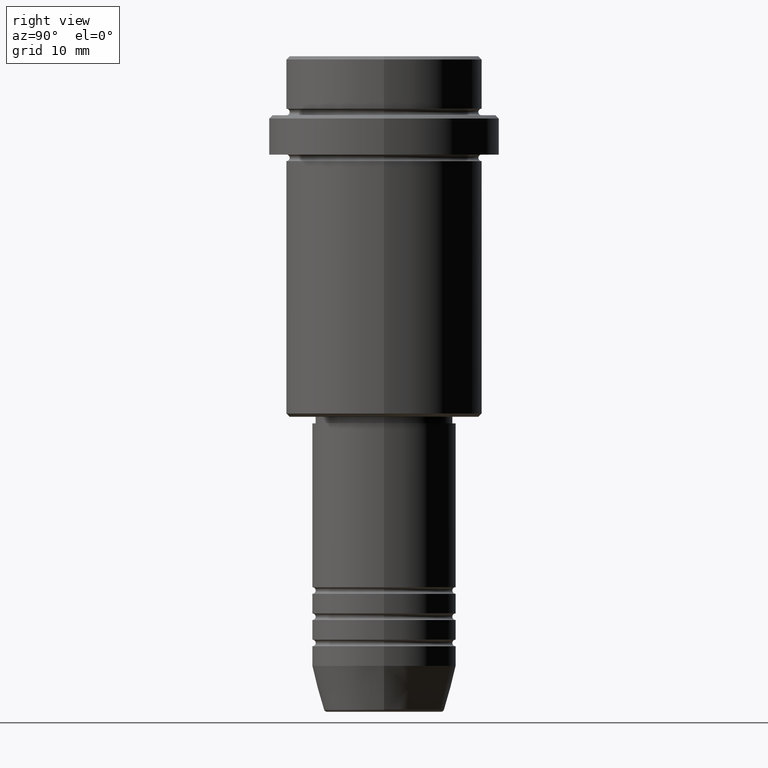
[diagram: clean part render]
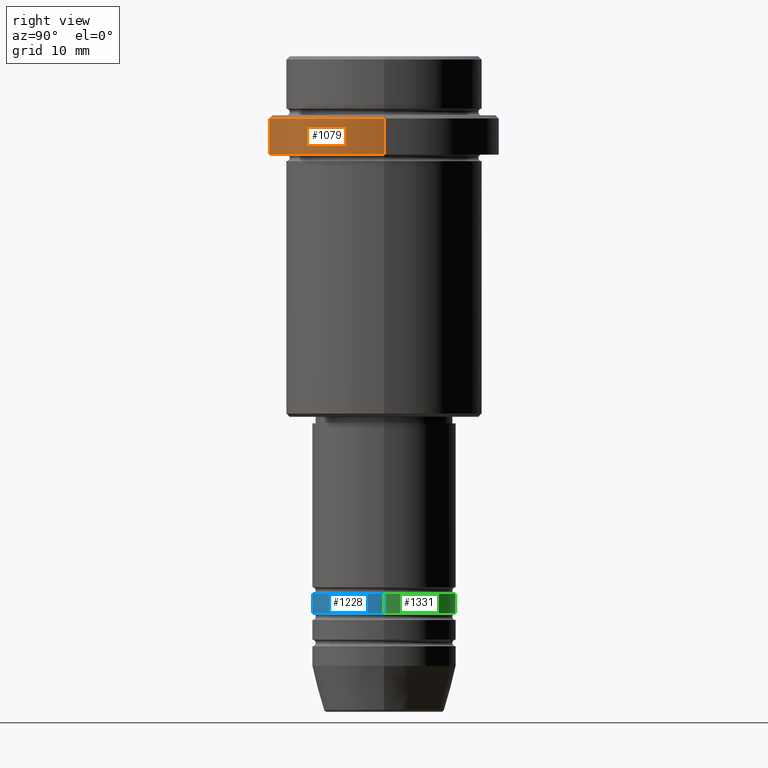
[diagram: same view with three faces highlighted in distinct colors, each labeled with its STEP entity id]
A machine part, right view with three faces highlighted in distinct colors.
Their STEP definitions:

[orange] entity #1079 — the highlighted cylindrical surface (partial cylindrical patch) has radius 17.5 mm, axis along (-0, -0, 1).
#160 = VERTEX_POINT ( 'NONE', #935 ) ;
#176 = CARTESIAN_POINT ( 'NONE',  ( -17.50000000000000000, 2.143131898507868248E-15, -9.500000000000026645 ) ) ;
#203 = ORIENTED_EDGE ( 'NONE', *, *, #1408, .T. ) ;
#205 = ORIENTED_EDGE ( 'NONE', *, *, #267, .T. ) ;
#237 = CARTESIAN_POINT ( 'NONE',  ( 0.000000000000000000, 0.000000000000000000, 0.000000000000000000 ) ) ;
#247 = CIRCLE ( 'NONE', #276, 17.50000000000000000 ) ;
#263 = DIRECTION ( 'NONE',  ( -0.000000000000000000, -0.000000000000000000, 1.000000000000000000 ) ) ;
#267 = EDGE_CURVE ( 'NONE', #1060, #160, #491, .T. ) ;
#276 = AXIS2_PLACEMENT_3D ( 'NONE', #400, #1279, #1065 ) ;
#383 = CIRCLE ( 'NONE', #922, 17.50000000000000000 ) ;
#388 = VECTOR ( 'NONE', #263, 1000.000000000000000 ) ;
#389 = LINE ( 'NONE', #1266, #388 ) ;
#400 = CARTESIAN_POINT ( 'NONE',  ( 0.000000000000000000, 0.000000000000000000, -9.500000000000026645 ) ) ;
#451 = CARTESIAN_POINT ( 'NONE',  ( 0.000000000000000000, 0.000000000000000000, -15.00000000000000000 ) ) ;
#459 = DIRECTION ( 'NONE',  ( -0.000000000000000000, -0.000000000000000000, 1.000000000000000000 ) ) ;
#486 = DIRECTION ( 'NONE',  ( -0.000000000000000000, -0.000000000000000000, 1.000000000000000000 ) ) ;
#491 = LINE ( 'NONE', #633, #1048 ) ;
#525 = EDGE_CURVE ( 'NONE', #160, #960, #247, .T. ) ;
#633 = CARTESIAN_POINT ( 'NONE',  ( 17.50000000000000000, 0.000000000000000000, 0.000000000000000000 ) ) ;
#639 = EDGE_LOOP ( 'NONE', ( #1204, #203, #205, #1051 ) ) ;
#686 = DIRECTION ( 'NONE',  ( 1.000000000000000000, 0.000000000000000000, 0.000000000000000000 ) ) ;
#719 = CARTESIAN_POINT ( 'NONE',  ( -17.50000000000000000, 2.143131898507868248E-15, -15.00000000000000000 ) ) ;
#846 = EDGE_CURVE ( 'NONE', #855, #960, #389, .T. ) ;
#855 = VERTEX_POINT ( 'NONE', #719 ) ;
#922 = AXIS2_PLACEMENT_3D ( 'NONE', #451, #459, #1130 ) ;
#935 = CARTESIAN_POINT ( 'NONE',  ( 17.50000000000000000, 0.000000000000000000, -9.500000000000026645 ) ) ;
#960 = VERTEX_POINT ( 'NONE', #176 ) ;
#1048 = VECTOR ( 'NONE', #486, 1000.000000000000000 ) ;
#1051 = ORIENTED_EDGE ( 'NONE', *, *, #525, .T. ) ;
#1060 = VERTEX_POINT ( 'NONE', #1131 ) ;
#1065 = DIRECTION ( 'NONE',  ( 1.000000000000000000, 0.000000000000000000, 0.000000000000000000 ) ) ;
#1073 = AXIS2_PLACEMENT_3D ( 'NONE', #237, #1137, #686 ) ;
#1079 = ADVANCED_FACE ( 'NONE', ( #1251 ), #1335, .T. ) ;
#1130 = DIRECTION ( 'NONE',  ( 1.000000000000000000, 0.000000000000000000, 0.000000000000000000 ) ) ;
#1131 = CARTESIAN_POINT ( 'NONE',  ( 17.50000000000000000, 0.000000000000000000, -15.00000000000000000 ) ) ;
#1137 = DIRECTION ( 'NONE',  ( -0.000000000000000000, -0.000000000000000000, 1.000000000000000000 ) ) ;
#1204 = ORIENTED_EDGE ( 'NONE', *, *, #846, .F. ) ;
#1251 = FACE_OUTER_BOUND ( 'NONE', #639, .T. ) ;
#1266 = CARTESIAN_POINT ( 'NONE',  ( -17.50000000000000000, 2.143131898507868248E-15, 0.000000000000000000 ) ) ;
#1279 = DIRECTION ( 'NONE',  ( 0.000000000000000000, 0.000000000000000000, -1.000000000000000000 ) ) ;
#1335 = CYLINDRICAL_SURFACE ( 'NONE', #1073, 17.50000000000000000 ) ;
#1408 = EDGE_CURVE ( 'NONE', #855, #1060, #383, .T. ) ;

[blue] entity #1228 — the highlighted cylindrical surface (partial cylindrical patch) has radius 11 mm, axis along (-0, -0, 1).
#6 = VECTOR ( 'NONE', #441, 1000.000000000000000 ) ;
#33 = VECTOR ( 'NONE', #594, 1000.000000000000000 ) ;
#36 = CIRCLE ( 'NONE', #144, 11.00000000000000000 ) ;
#87 = DIRECTION ( 'NONE',  ( -0.000000000000000000, -0.000000000000000000, 1.000000000000000000 ) ) ;
#144 = AXIS2_PLACEMENT_3D ( 'NONE', #1303, #87, #1288 ) ;
#206 = CARTESIAN_POINT ( 'NONE',  ( -11.00000000000000000, 1.347111479062088405E-15, 0.000000000000000000 ) ) ;
#217 = AXIS2_PLACEMENT_3D ( 'NONE', #723, #1158, #957 ) ;
#286 = CYLINDRICAL_SURFACE ( 'NONE', #217, 11.00000000000000000 ) ;
#309 = DIRECTION ( 'NONE',  ( 1.000000000000000000, 0.000000000000000000, 0.000000000000000000 ) ) ;
#325 = CARTESIAN_POINT ( 'NONE',  ( 11.00000000000000000, 0.000000000000000000, -84.99999999999988631 ) ) ;
#364 = CIRCLE ( 'NONE', #710, 11.00000000000000000 ) ;
#441 = DIRECTION ( 'NONE',  ( -0.000000000000000000, -0.000000000000000000, 1.000000000000000000 ) ) ;
#515 = DIRECTION ( 'NONE',  ( -0.000000000000000000, -0.000000000000000000, 1.000000000000000000 ) ) ;
#536 = CARTESIAN_POINT ( 'NONE',  ( 11.00000000000000000, 0.000000000000000000, -81.99999999999987210 ) ) ;
#540 = VERTEX_POINT ( 'NONE', #536 ) ;
#594 = DIRECTION ( 'NONE',  ( -0.000000000000000000, -0.000000000000000000, 1.000000000000000000 ) ) ;
#677 = CARTESIAN_POINT ( 'NONE',  ( -11.00000000000000000, 1.347111479062088405E-15, -81.99999999999987210 ) ) ;
#683 = EDGE_LOOP ( 'NONE', ( #959, #717, #1088, #755 ) ) ;
#696 = CARTESIAN_POINT ( 'NONE',  ( 11.00000000000000000, 0.000000000000000000, 0.000000000000000000 ) ) ;
#710 = AXIS2_PLACEMENT_3D ( 'NONE', #1385, #515, #309 ) ;
#717 = ORIENTED_EDGE ( 'NONE', *, *, #1320, .T. ) ;
#723 = CARTESIAN_POINT ( 'NONE',  ( 0.000000000000000000, 0.000000000000000000, 0.000000000000000000 ) ) ;
#755 = ORIENTED_EDGE ( 'NONE', *, *, #999, .F. ) ;
#957 = DIRECTION ( 'NONE',  ( 1.000000000000000000, 0.000000000000000000, 0.000000000000000000 ) ) ;
#959 = ORIENTED_EDGE ( 'NONE', *, *, #1056, .F. ) ;
#989 = CARTESIAN_POINT ( 'NONE',  ( -11.00000000000000000, 1.347111479062088405E-15, -84.99999999999988631 ) ) ;
#999 = EDGE_CURVE ( 'NONE', #1384, #540, #364, .T. ) ;
#1045 = EDGE_CURVE ( 'NONE', #1323, #540, #1116, .T. ) ;
#1056 = EDGE_CURVE ( 'NONE', #1062, #1384, #1344, .T. ) ;
#1062 = VERTEX_POINT ( 'NONE', #989 ) ;
#1088 = ORIENTED_EDGE ( 'NONE', *, *, #1045, .T. ) ;
#1116 = LINE ( 'NONE', #696, #6 ) ;
#1158 = DIRECTION ( 'NONE',  ( -0.000000000000000000, -0.000000000000000000, 1.000000000000000000 ) ) ;
#1228 = ADVANCED_FACE ( 'NONE', ( #1268 ), #286, .T. ) ;
#1268 = FACE_OUTER_BOUND ( 'NONE', #683, .T. ) ;
#1288 = DIRECTION ( 'NONE',  ( 1.000000000000000000, 0.000000000000000000, 0.000000000000000000 ) ) ;
#1303 = CARTESIAN_POINT ( 'NONE',  ( 0.000000000000000000, 0.000000000000000000, -84.99999999999988631 ) ) ;
#1320 = EDGE_CURVE ( 'NONE', #1062, #1323, #36, .T. ) ;
#1323 = VERTEX_POINT ( 'NONE', #325 ) ;
#1344 = LINE ( 'NONE', #206, #33 ) ;
#1384 = VERTEX_POINT ( 'NONE', #677 ) ;
#1385 = CARTESIAN_POINT ( 'NONE',  ( 0.000000000000000000, 0.000000000000000000, -81.99999999999987210 ) ) ;

[green] entity #1331 — the highlighted cylindrical surface (partial cylindrical patch) has radius 11 mm, axis along (-0, -0, 1).
#6 = VECTOR ( 'NONE', #441, 1000.000000000000000 ) ;
#33 = VECTOR ( 'NONE', #594, 1000.000000000000000 ) ;
#71 = CARTESIAN_POINT ( 'NONE',  ( 0.000000000000000000, 0.000000000000000000, 0.000000000000000000 ) ) ;
#159 = EDGE_LOOP ( 'NONE', ( #1373, #858, #260, #595 ) ) ;
#195 = DIRECTION ( 'NONE',  ( 1.000000000000000000, 0.000000000000000000, 0.000000000000000000 ) ) ;
#206 = CARTESIAN_POINT ( 'NONE',  ( -11.00000000000000000, 1.347111479062088405E-15, 0.000000000000000000 ) ) ;
#222 = AXIS2_PLACEMENT_3D ( 'NONE', #1270, #1172, #1368 ) ;
#260 = ORIENTED_EDGE ( 'NONE', *, *, #944, .F. ) ;
#287 = CARTESIAN_POINT ( 'NONE',  ( 0.000000000000000000, 0.000000000000000000, -84.99999999999988631 ) ) ;
#314 = CYLINDRICAL_SURFACE ( 'NONE', #1316, 11.00000000000000000 ) ;
#325 = CARTESIAN_POINT ( 'NONE',  ( 11.00000000000000000, 0.000000000000000000, -84.99999999999988631 ) ) ;
#425 = DIRECTION ( 'NONE',  ( -0.000000000000000000, -0.000000000000000000, 1.000000000000000000 ) ) ;
#441 = DIRECTION ( 'NONE',  ( -0.000000000000000000, -0.000000000000000000, 1.000000000000000000 ) ) ;
#524 = FACE_OUTER_BOUND ( 'NONE', #159, .T. ) ;
#536 = CARTESIAN_POINT ( 'NONE',  ( 11.00000000000000000, 0.000000000000000000, -81.99999999999987210 ) ) ;
#540 = VERTEX_POINT ( 'NONE', #536 ) ;
#594 = DIRECTION ( 'NONE',  ( -0.000000000000000000, -0.000000000000000000, 1.000000000000000000 ) ) ;
#595 = ORIENTED_EDGE ( 'NONE', *, *, #1045, .F. ) ;
#629 = CIRCLE ( 'NONE', #222, 11.00000000000000000 ) ;
#657 = DIRECTION ( 'NONE',  ( 1.000000000000000000, 0.000000000000000000, 0.000000000000000000 ) ) ;
#677 = CARTESIAN_POINT ( 'NONE',  ( -11.00000000000000000, 1.347111479062088405E-15, -81.99999999999987210 ) ) ;
#696 = CARTESIAN_POINT ( 'NONE',  ( 11.00000000000000000, 0.000000000000000000, 0.000000000000000000 ) ) ;
#856 = DIRECTION ( 'NONE',  ( -0.000000000000000000, -0.000000000000000000, 1.000000000000000000 ) ) ;
#858 = ORIENTED_EDGE ( 'NONE', *, *, #1056, .T. ) ;
#944 = EDGE_CURVE ( 'NONE', #540, #1384, #629, .T. ) ;
#977 = EDGE_CURVE ( 'NONE', #1323, #1062, #1078, .T. ) ;
#989 = CARTESIAN_POINT ( 'NONE',  ( -11.00000000000000000, 1.347111479062088405E-15, -84.99999999999988631 ) ) ;
#1045 = EDGE_CURVE ( 'NONE', #1323, #540, #1116, .T. ) ;
#1056 = EDGE_CURVE ( 'NONE', #1062, #1384, #1344, .T. ) ;
#1062 = VERTEX_POINT ( 'NONE', #989 ) ;
#1078 = CIRCLE ( 'NONE', #1217, 11.00000000000000000 ) ;
#1116 = LINE ( 'NONE', #696, #6 ) ;
#1172 = DIRECTION ( 'NONE',  ( -0.000000000000000000, -0.000000000000000000, 1.000000000000000000 ) ) ;
#1217 = AXIS2_PLACEMENT_3D ( 'NONE', #287, #856, #657 ) ;
#1270 = CARTESIAN_POINT ( 'NONE',  ( 0.000000000000000000, 0.000000000000000000, -81.99999999999987210 ) ) ;
#1316 = AXIS2_PLACEMENT_3D ( 'NONE', #71, #425, #195 ) ;
#1323 = VERTEX_POINT ( 'NONE', #325 ) ;
#1331 = ADVANCED_FACE ( 'NONE', ( #524 ), #314, .T. ) ;
#1344 = LINE ( 'NONE', #206, #33 ) ;
#1368 = DIRECTION ( 'NONE',  ( 1.000000000000000000, 0.000000000000000000, 0.000000000000000000 ) ) ;
#1373 = ORIENTED_EDGE ( 'NONE', *, *, #977, .T. ) ;
#1384 = VERTEX_POINT ( 'NONE', #677 ) ;